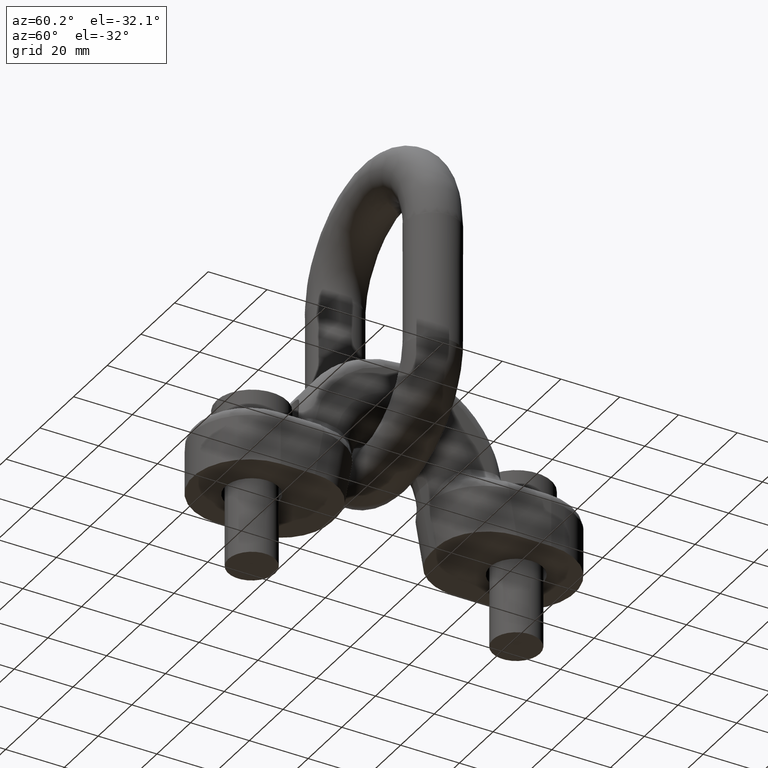
[diagram: clean part render]
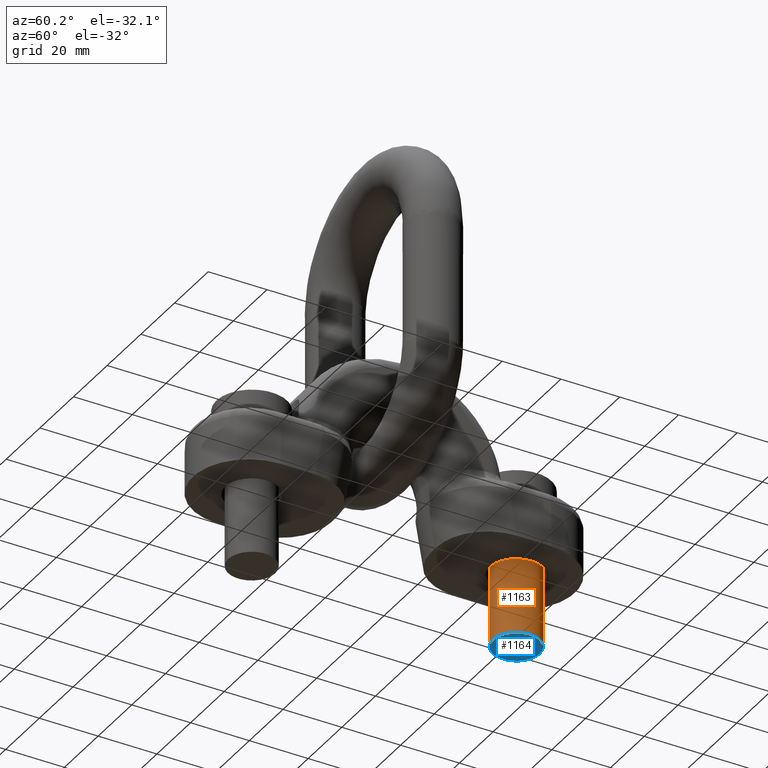
[diagram: same view with the hole feature highlighted: cylindrical wall and planar end face, labeled with their STEP entity ids]
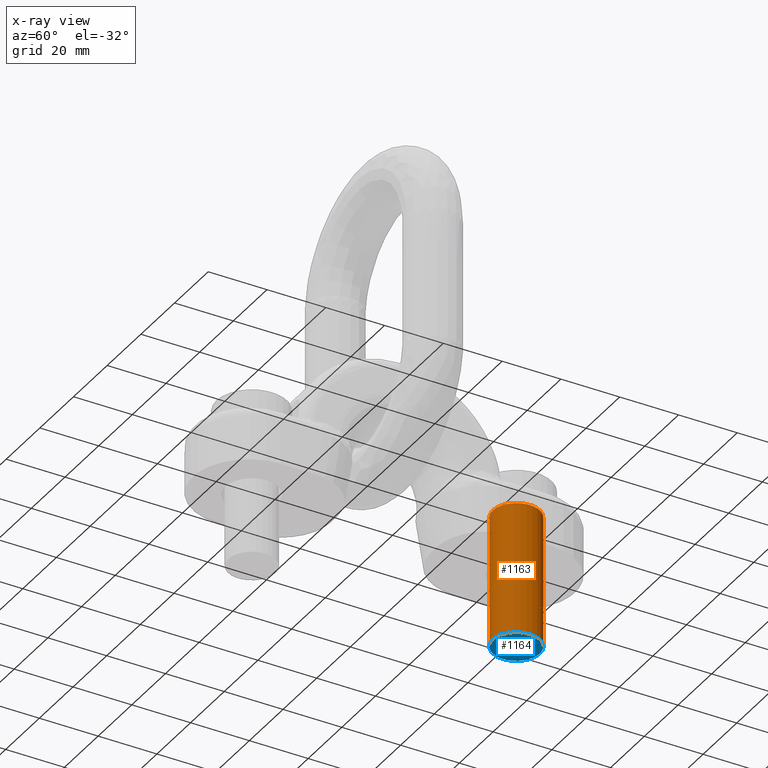
[diagram: x-ray of the same camera — body ghosted, the hole faces saturated]
A machine part, auxiliary view. The highlighted faces form one hole feature of diameter 16 mm: the cylindrical wall (entity #1163, orange) and its adjacent planar end face (entity #1164, blue) — they share a circular edge in the B-rep.
The next image is the same camera in x-ray (body ghosted, the hole faces saturated) — the bore reads through the body.
Wall:
#1163=ADVANCED_FACE('',(#1525,#1526),#1198,.T.);
#1198=CYLINDRICAL_SURFACE('',#3758,8.);
#1525=FACE_BOUND('',#1730,.T.);
#1526=FACE_BOUND('',#1731,.T.);
#1730=EDGE_LOOP('',(#2860));
#1731=EDGE_LOOP('',(#2861));
#2045=CIRCLE('',#3755,8.);
#2046=CIRCLE('',#3757,8.);
#2860=ORIENTED_EDGE('',*,*,#3536,.T.);
#2861=ORIENTED_EDGE('',*,*,#3535,.F.);
#3127=VERTEX_POINT('',#8022);
#3128=VERTEX_POINT('',#8025);
#3535=EDGE_CURVE('',#3127,#3127,#2045,.T.);
#3536=EDGE_CURVE('',#3128,#3128,#2046,.T.);
#3755=AXIS2_PLACEMENT_3D('',#8021,#4313,#4314);
#3757=AXIS2_PLACEMENT_3D('',#8024,#4317,#4318);
#3758=AXIS2_PLACEMENT_3D('',#8026,#4319,#4320);
#4313=DIRECTION('',(0.,0.,1.));
#4314=DIRECTION('',(6.12323399573677E-17,1.,0.));
#4317=DIRECTION('',(0.,0.,1.));
#4318=DIRECTION('',(6.12323399573677E-17,1.,0.));
#4319=DIRECTION('',(0.,0.,1.));
#4320=DIRECTION('',(1.,0.,0.));
#8021=CARTESIAN_POINT('',(0.,45.,20.));
#8022=CARTESIAN_POINT('',(4.89858719658941E-16,53.,20.));
#8024=CARTESIAN_POINT('',(0.,45.,-25.));
#8025=CARTESIAN_POINT('',(4.89858719658941E-16,53.,-25.));
#8026=CARTESIAN_POINT('',(0.,45.,-25.));
End face:
#798=PLANE('',#3759);
#989=FACE_OUTER_BOUND('',#1732,.T.);
#1164=ADVANCED_FACE('',(#989),#798,.F.);
#1732=EDGE_LOOP('',(#2862));
#2046=CIRCLE('',#3757,8.);
#2862=ORIENTED_EDGE('',*,*,#3536,.F.);
#3128=VERTEX_POINT('',#8025);
#3536=EDGE_CURVE('',#3128,#3128,#2046,.T.);
#3757=AXIS2_PLACEMENT_3D('',#8024,#4317,#4318);
#3759=AXIS2_PLACEMENT_3D('',#8027,#4321,#4322);
#4317=DIRECTION('',(0.,0.,1.));
#4318=DIRECTION('',(6.12323399573677E-17,1.,0.));
#4321=DIRECTION('',(0.,0.,1.));
#4322=DIRECTION('',(1.,0.,0.));
#8024=CARTESIAN_POINT('',(0.,45.,-25.));
#8025=CARTESIAN_POINT('',(4.89858719658941E-16,53.,-25.));
#8027=CARTESIAN_POINT('',(0.,45.,-25.));